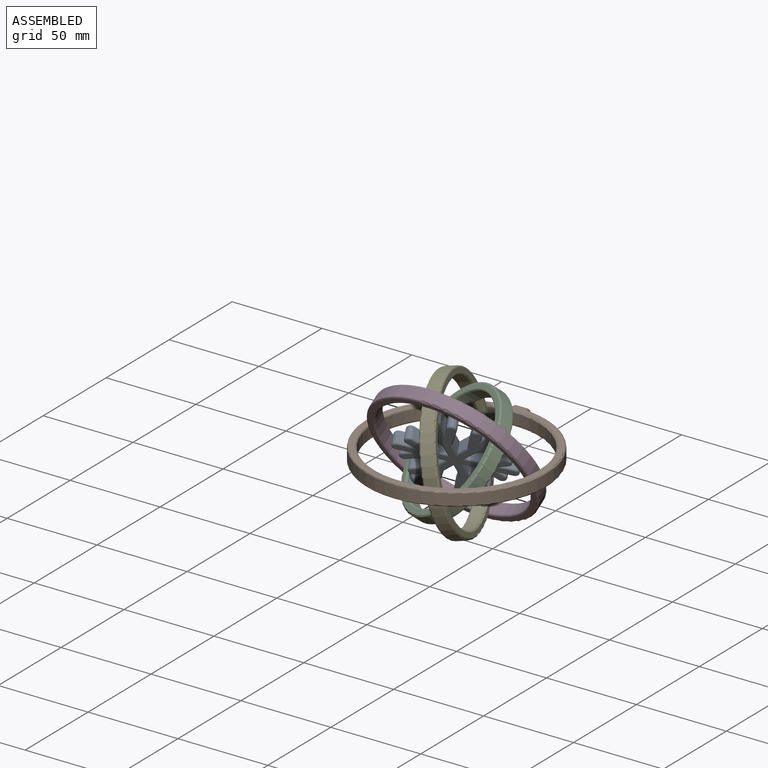
[diagram: assembled view]
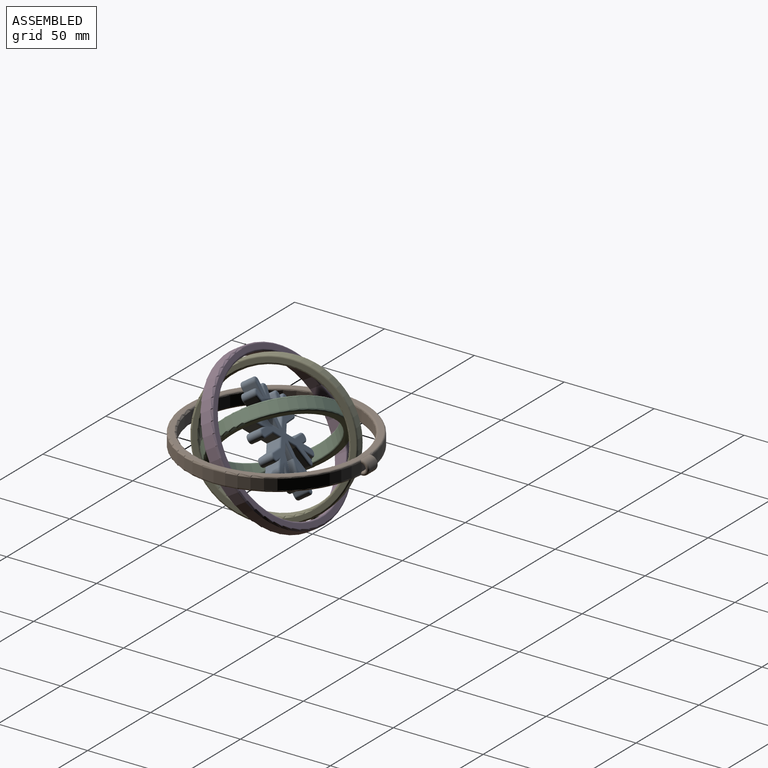
[diagram: assembled view, second angle]
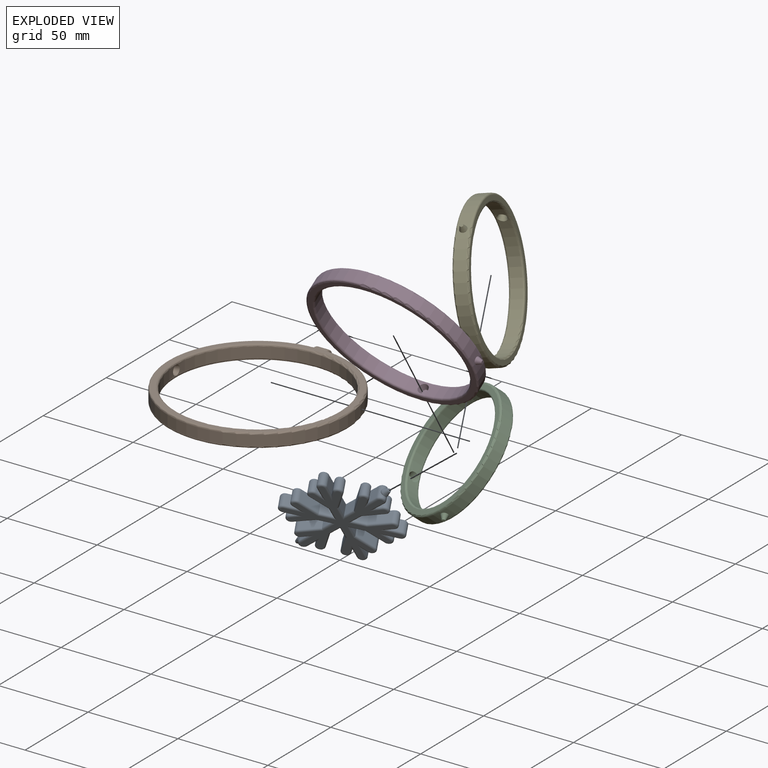
[diagram: exploded view]
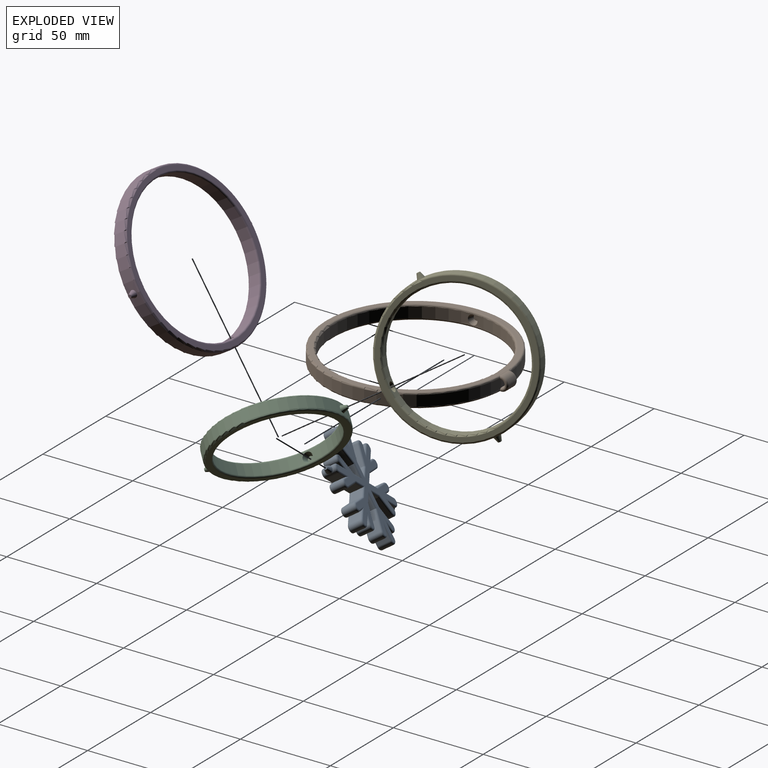
[diagram: exploded view, second angle]
ASSEMBLY  parts=5 mates=4
PART A: 208 faces, bbox 53x66x8 mm
  f0: cylinder r=2.5mm len=6mm, axis (0,0,1), area 33.2mm2, adj f13,f14,f72,f75,f97,f164
  f1: cylinder r=2.5mm len=6mm, axis (0,0,1), area 33.2mm2, adj f37,f38,f68,f71,f120,f185
  f2: plane 6.06x6mm, normal (-0.5,0.87,0), area 42mm2, adj f3,f49,f86,f151
  f3: plane 11.83x6mm, normal (0,1,0), area 71mm2, adj f2,f55,f84,f149
  f4: plane 6x3.17mm, normal (0,-1,0), area 19mm2, adj f5,f55,f80,f145
  f5: plane 6x5.34mm, normal (-0.5,0.87,0), area 37mm2, adj f4,f62,f78,f143
  f6: plane 6x5.34mm, normal (0.5,-0.87,0), area 37mm2, adj f7,f62,f77,f144
  f7: plane 6x2.75mm, normal (-0.87,0.5,0), area 19mm2, adj f6,f59,f79,f146
  f8: plane 10.25x6mm, normal (0.87,-0.5,0), area 71mm2, adj f9,f59,f83,f150
  f9: plane 6.06x6mm, normal (0.5,-0.87,0), area 42mm2, adj f8,f10,f85,f152
  f10: plane 7x6mm, normal (-1,0,0), area 42mm2, adj f9,f11,f87,f154
  f11: plane 10.25x6mm, normal (-0.87,0.5,0), area 71mm2, adj f10,f54,f89,f156
  f12: plane 6x2.75mm, normal (0.87,-0.5,0), area 19mm2, adj f13,f54,f93,f160
  f13: plane 6.17x6mm, normal (-1,0,0), area 37mm2, adj f0,f12,f95,f162
  f14: plane 6.17x6mm, normal (1,0,0), area 37mm2, adj f0,f15,f99,f166
  f15: plane 6x2.75mm, normal (-0.87,-0.5,0), area 19mm2, adj f14,f61,f101,f168
  f16: plane 10.25x6mm, normal (0.87,0.5,0), area 71mm2, adj f17,f61,f105,f172
  f17: plane 7x6mm, normal (1,0,0), area 42mm2, adj f16,f18,f107,f174
  f18: plane 6.06x6mm, normal (-0.5,-0.87,0), area 42mm2, adj f17,f19,f109,f176
  f19: plane 10.25x6mm, normal (-0.87,-0.5,0), area 71mm2, adj f18,f65,f111,f178
  f20: plane 6x2.75mm, normal (0.87,0.5,0), area 19mm2, adj f21,f65,f115,f182
  f21: plane 6x5.34mm, normal (-0.5,-0.87,0), area 37mm2, adj f20,f58,f117,f184
  f22: plane 6x5.34mm, normal (0.5,0.87,0), area 37mm2, adj f23,f58,f121,f188
  f23: plane 6x3.17mm, normal (0,-1,0), area 19mm2, adj f22,f66,f123,f190
  f24: plane 11.83x6mm, normal (0,1,0), area 71mm2, adj f25,f66,f127,f194
  f25: plane 6.06x6mm, normal (0.5,0.87,0), area 42mm2, adj f24,f26,f129,f196
  f26: plane 6.06x6mm, normal (0.5,-0.87,0), area 42mm2, adj f25,f27,f131,f198
  f27: plane 11.83x6mm, normal (0,-1,0), area 71mm2, adj f26,f56,f133,f200
  f28: plane 6x3.17mm, normal (0,1,0), area 19mm2, adj f29,f56,f137,f204
  f29: plane 6x5.34mm, normal (0.5,-0.87,0), area 37mm2, adj f28,f52,f139,f206
  f30: plane 6x5.34mm, normal (-0.5,0.87,0), area 37mm2, adj f31,f52,f140,f205
  f31: plane 6x2.75mm, normal (0.87,-0.5,0), area 19mm2, adj f30,f64,f138,f203
  f32: plane 10.25x6mm, normal (-0.87,0.5,0), area 71mm2, adj f33,f64,f134,f199
  f33: plane 6.06x6mm, normal (-0.5,0.87,0), area 42mm2, adj f32,f34,f132,f197
  f34: plane 7x6mm, normal (1,0,0), area 42mm2, adj f33,f35,f130,f195
  f35: plane 10.25x6mm, normal (0.87,-0.5,0), area 71mm2, adj f34,f67,f128,f193
  f36: plane 6x2.75mm, normal (-0.87,0.5,0), area 19mm2, adj f37,f67,f124,f189
  f37: plane 6.17x6mm, normal (1,0,0), area 37mm2, adj f1,f36,f122,f187
  f38: plane 6.17x6mm, normal (-1,0,0), area 37mm2, adj f1,f39,f118,f183
  f39: plane 6x2.75mm, normal (0.87,0.5,0), area 19mm2, adj f38,f60,f116,f181
  f40: plane 10.25x6mm, normal (-0.87,-0.5,0), area 71mm2, adj f41,f60,f112,f177
  f41: plane 7x6mm, normal (-1,0,0), area 42mm2, adj f40,f42,f110,f175
  f42: plane 6.06x6mm, normal (0.5,0.87,0), area 42mm2, adj f41,f43,f108,f173
  f43: plane 10.25x6mm, normal (0.87,0.5,0), area 71mm2, adj f42,f57,f106,f171
  f44: plane 6x2.75mm, normal (-0.87,-0.5,0), area 19mm2, adj f45,f57,f102,f167
  f45: plane 6x5.34mm, normal (0.5,0.87,0), area 37mm2, adj f44,f63,f100,f165
  f46: plane 6x5.34mm, normal (-0.5,-0.87,0), area 37mm2, adj f47,f63,f96,f161
  f47: plane 6x3.17mm, normal (0,1,0), area 19mm2, adj f46,f53,f94,f159
  f48: plane 11.83x6mm, normal (0,-1,0), area 71mm2, adj f49,f53,f90,f155
  f49: plane 6.06x6mm, normal (-0.5,-0.87,0), area 42mm2, adj f2,f48,f88,f153
  f50: plane 58x50.63mm, normal (0,0,1), area 877.2mm2, adj f76,f77,f78,f79,f80,f81,f82,f83
  f51: plane 58x50.63mm, normal (0,0,-1), area 877.2mm2, adj f142,f143,f144,f145,f146,f147,f148,f149
  f52: cylinder r=2.5mm len=6mm, axis (0,0,1), area 47.1mm2, adj f29,f30,f141,f207
  f53: cylinder r=2.5mm len=6mm, axis (0,0,-1), area 47.1mm2, adj f47,f48,f92,f157
  f54: cylinder r=2.5mm len=6mm, axis (0,0,-1), area 47.1mm2, adj f11,f12,f91,f158
  f55: cylinder r=2.5mm len=6mm, axis (0,0,-1), area 47.1mm2, adj f3,f4,f82,f147
  f56: cylinder r=2.5mm len=6mm, axis (0,0,-1), area 47.1mm2, adj f27,f28,f135,f202
  f57: cylinder r=2.5mm len=6mm, axis (0,0,-1), area 47.1mm2, adj f43,f44,f104,f169
  f58: cylinder r=2.5mm len=6mm, axis (0,0,1), area 47.1mm2, adj f21,f22,f119,f186
  f59: cylinder r=2.5mm len=6mm, axis (0,0,-1), area 47.1mm2, adj f7,f8,f81,f148
  f60: cylinder r=2.5mm len=6mm, axis (0,0,-1), area 47.1mm2, adj f39,f40,f114,f179
  f61: cylinder r=2.5mm len=6mm, axis (0,0,-1), area 47.1mm2, adj f15,f16,f103,f170
  f62: cylinder r=2.5mm len=6mm, axis (0,0,1), area 47.1mm2, adj f5,f6,f76,f142
  f63: cylinder r=2.5mm len=6mm, axis (0,0,1), area 47.1mm2, adj f45,f46,f98,f163
  f64: cylinder r=2.5mm len=6mm, axis (0,0,-1), area 47.1mm2, adj f31,f32,f136,f201
  f65: cylinder r=2.5mm len=6mm, axis (0,0,-1), area 47.1mm2, adj f19,f20,f113,f180
  f66: cylinder r=2.5mm len=6mm, axis (0,0,-1), area 47.1mm2, adj f23,f24,f125,f192
  f67: cylinder r=2.5mm len=6mm, axis (0,0,-1), area 47.1mm2, adj f35,f36,f126,f191
  f68: cylinder r=2mm len=4mm, axis (0,-1,0), area 2.9mm2, adj f1,f70
  f69: plane 1.82x1.82mm, normal (0,1,0), area 2.6mm2, adj f70
  f70: cone r=2mm half-angle=20deg, axis (0,-1,0), area 29.2mm2, adj f68,f69,f71
  f71: cylinder r=2mm len=4mm, axis (0,-1,0), area 2.9mm2, adj f1,f70
  f72: cylinder r=2mm len=4mm, axis (0,1,0), area 2.9mm2, adj f0,f74
  f73: plane 1.82x1.82mm, normal (0,-1,0), area 2.6mm2, adj f74
  f74: cone r=2mm half-angle=20deg, axis (0,1,0), area 29.2mm2, adj f72,f73,f75
  f75: cylinder r=2mm len=4mm, axis (0,1,0), area 2.9mm2, adj f0,f74
  f76: torus R=1.5mm, axis (0,0,1), area 10.5mm2, adj f50,f62,f77,f78
  f77: cylinder r=1mm len=9.08mm, axis (-0.87,-0.5,0), area 11.8mm2, adj f6,f50,f76,f79
  f78: cylinder r=1mm len=9.08mm, axis (0.87,0.5,0), area 11.8mm2, adj f5,f50,f76,f80
  f79: cylinder r=1mm len=6.48mm, axis (0.5,0.87,0), area 7.1mm2, adj f7,f50,f77,f81
  f80: cylinder r=1mm len=6.9mm, axis (-1,0,0), area 7.1mm2, adj f4,f50,f78,f82
  f81: torus R=1.5mm, axis (0,0,1), area 10.5mm2, adj f50,f59,f79,f83
  f82: torus R=1.5mm, axis (0,0,1), area 10.5mm2, adj f50,f55,f80,f84
  f83: cylinder r=1mm len=10.98mm, axis (-0.5,-0.87,0), area 18.7mm2, adj f8,f50,f81,f85
  f84: cylinder r=1mm len=12.1mm, axis (1,0,0), area 18.7mm2, adj f3,f50,f82,f86
  f85: cylinder r=1mm len=8.29mm, axis (-0.87,-0.5,0), area 12.1mm2, adj f9,f50,f83,f87
  f86: cylinder r=1mm len=8.29mm, axis (0.87,0.5,0), area 12.1mm2, adj f2,f50,f84,f88
  f87: cylinder r=1mm len=9mm, axis (0,1,0), area 12.1mm2, adj f10,f50,f85,f89
  f88: cylinder r=1mm len=8.29mm, axis (-0.87,0.5,0), area 12.1mm2, adj f49,f50,f86,f90
  f89: cylinder r=1mm len=10.98mm, axis (0.5,0.87,0), area 18.7mm2, adj f11,f50,f87,f91
  f90: cylinder r=1mm len=12.1mm, axis (-1,0,0), area 18.7mm2, adj f48,f50,f88,f92
  f91: torus R=1.5mm, axis (0,0,1), area 10.5mm2, adj f50,f54,f89,f93
  f92: torus R=1.5mm, axis (0,0,1), area 10.5mm2, adj f50,f53,f90,f94
  f93: cylinder r=1mm len=6.48mm, axis (-0.5,-0.87,0), area 7.1mm2, adj f12,f50,f91,f95
  f94: cylinder r=1mm len=6.9mm, axis (1,0,0), area 7.1mm2, adj f47,f50,f92,f96
  f95: cylinder r=1mm len=9.9mm, axis (0,1,0), area 11.8mm2, adj f13,f50,f93,f97
  f96: cylinder r=1mm len=9.08mm, axis (-0.87,0.5,0), area 11.8mm2, adj f46,f50,f94,f98
  f97: torus R=1.5mm, axis (0,0,1), area 10.5mm2, adj f0,f50,f95,f99
  f98: torus R=1.5mm, axis (0,0,1), area 10.5mm2, adj f50,f63,f96,f100
  f99: cylinder r=1mm len=9.9mm, axis (0,-1,0), area 11.8mm2, adj f14,f50,f97,f101
  f100: cylinder r=1mm len=9.08mm, axis (0.87,-0.5,0), area 11.8mm2, adj f45,f50,f98,f102
  f101: cylinder r=1mm len=6.48mm, axis (-0.5,0.87,0), area 7.1mm2, adj f15,f50,f99,f103
  f102: cylinder r=1mm len=6.48mm, axis (-0.5,0.87,0), area 7.1mm2, adj f44,f50,f100,f104
  f103: torus R=1.5mm, axis (0,0,1), area 10.5mm2, adj f50,f61,f101,f105
  f104: torus R=1.5mm, axis (0,0,1), area 10.5mm2, adj f50,f57,f102,f106
  f105: cylinder r=1mm len=10.98mm, axis (0.5,-0.87,0), area 18.7mm2, adj f16,f50,f103,f107
  f106: cylinder r=1mm len=10.98mm, axis (0.5,-0.87,0), area 18.7mm2, adj f43,f50,f104,f108
  f107: cylinder r=1mm len=9mm, axis (0,-1,0), area 12.1mm2, adj f17,f50,f105,f109
  f108: cylinder r=1mm len=8.29mm, axis (0.87,-0.5,0), area 12.1mm2, adj f42,f50,f106,f110
  f109: cylinder r=1mm len=8.29mm, axis (-0.87,0.5,0), area 12.1mm2, adj f18,f50,f107,f111
  f110: cylinder r=1mm len=9mm, axis (0,1,0), area 12.1mm2, adj f41,f50,f108,f112
  f111: cylinder r=1mm len=10.98mm, axis (-0.5,0.87,0), area 18.7mm2, adj f19,f50,f109,f113
  f112: cylinder r=1mm len=10.98mm, axis (-0.5,0.87,0), area 18.7mm2, adj f40,f50,f110,f114
  f113: torus R=1.5mm, axis (0,0,1), area 10.5mm2, adj f50,f65,f111,f115
  f114: torus R=1.5mm, axis (0,0,1), area 10.5mm2, adj f50,f60,f112,f116
  f115: cylinder r=1mm len=6.48mm, axis (0.5,-0.87,0), area 7.1mm2, adj f20,f50,f113,f117
  f116: cylinder r=1mm len=6.48mm, axis (0.5,-0.87,0), area 7.1mm2, adj f39,f50,f114,f118
  f117: cylinder r=1mm len=9.08mm, axis (-0.87,0.5,0), area 11.8mm2, adj f21,f50,f115,f119
  f118: cylinder r=1mm len=9.9mm, axis (0,1,0), area 11.8mm2, adj f38,f50,f116,f120
  f119: torus R=1.5mm, axis (0,0,1), area 10.5mm2, adj f50,f58,f117,f121
  f120: torus R=1.5mm, axis (0,0,1), area 10.5mm2, adj f1,f50,f118,f122
  f121: cylinder r=1mm len=9.08mm, axis (0.87,-0.5,0), area 11.8mm2, adj f22,f50,f119,f123
  f122: cylinder r=1mm len=9.9mm, axis (0,-1,0), area 11.8mm2, adj f37,f50,f120,f124
  f123: cylinder r=1mm len=6.9mm, axis (-1,0,0), area 7.1mm2, adj f23,f50,f121,f125
  f124: cylinder r=1mm len=6.48mm, axis (0.5,0.87,0), area 7.1mm2, adj f36,f50,f122,f126
  f125: torus R=1.5mm, axis (0,0,1), area 10.5mm2, adj f50,f66,f123,f127
  f126: torus R=1.5mm, axis (0,0,1), area 10.5mm2, adj f50,f67,f124,f128
  f127: cylinder r=1mm len=12.1mm, axis (1,0,0), area 18.7mm2, adj f24,f50,f125,f129
  f128: cylinder r=1mm len=10.98mm, axis (-0.5,-0.87,0), area 18.7mm2, adj f35,f50,f126,f130
  f129: cylinder r=1mm len=8.29mm, axis (0.87,-0.5,0), area 12.1mm2, adj f25,f50,f127,f131
  f130: cylinder r=1mm len=9mm, axis (0,-1,0), area 12.1mm2, adj f34,f50,f128,f132
  f131: cylinder r=1mm len=8.29mm, axis (-0.87,-0.5,0), area 12.1mm2, adj f26,f50,f129,f133
  f132: cylinder r=1mm len=8.29mm, axis (0.87,0.5,0), area 12.1mm2, adj f33,f50,f130,f134
  f133: cylinder r=1mm len=12.1mm, axis (-1,0,0), area 18.7mm2, adj f27,f50,f131,f135
  f134: cylinder r=1mm len=10.98mm, axis (0.5,0.87,0), area 18.7mm2, adj f32,f50,f132,f136
  f135: torus R=1.5mm, axis (0,0,1), area 10.5mm2, adj f50,f56,f133,f137
  f136: torus R=1.5mm, axis (0,0,1), area 10.5mm2, adj f50,f64,f134,f138
  f137: cylinder r=1mm len=6.9mm, axis (1,0,0), area 7.1mm2, adj f28,f50,f135,f139
  f138: cylinder r=1mm len=6.48mm, axis (-0.5,-0.87,0), area 7.1mm2, adj f31,f50,f136,f140
  f139: cylinder r=1mm len=9.08mm, axis (-0.87,-0.5,0), area 11.8mm2, adj f29,f50,f137,f141
  f140: cylinder r=1mm len=9.08mm, axis (0.87,0.5,0), area 11.8mm2, adj f30,f50,f138,f141
  f141: torus R=1.5mm, axis (0,0,1), area 10.5mm2, adj f50,f52,f139,f140
  f142: torus R=1.5mm, axis (0,0,1), area 10.5mm2, adj f51,f62,f143,f144
  f143: cylinder r=1mm len=9.08mm, axis (-0.87,-0.5,0), area 11.8mm2, adj f5,f51,f142,f145
  f144: cylinder r=1mm len=9.08mm, axis (0.87,0.5,0), area 11.8mm2, adj f6,f51,f142,f146
  f145: cylinder r=1mm len=6.9mm, axis (1,0,0), area 7.1mm2, adj f4,f51,f143,f147
  f146: cylinder r=1mm len=6.48mm, axis (-0.5,-0.87,0), area 7.1mm2, adj f7,f51,f144,f148
  f147: torus R=1.5mm, axis (0,0,1), area 10.5mm2, adj f51,f55,f145,f149
  f148: torus R=1.5mm, axis (0,0,1), area 10.5mm2, adj f51,f59,f146,f150
  f149: cylinder r=1mm len=12.1mm, axis (-1,0,0), area 18.7mm2, adj f3,f51,f147,f151
  f150: cylinder r=1mm len=10.98mm, axis (0.5,0.87,0), area 18.7mm2, adj f8,f51,f148,f152
  f151: cylinder r=1mm len=8.29mm, axis (-0.87,-0.5,0), area 12.1mm2, adj f2,f51,f149,f153
  f152: cylinder r=1mm len=8.29mm, axis (0.87,0.5,0), area 12.1mm2, adj f9,f51,f150,f154
  f153: cylinder r=1mm len=8.29mm, axis (0.87,-0.5,0), area 12.1mm2, adj f49,f51,f151,f155
  f154: cylinder r=1mm len=9mm, axis (0,-1,0), area 12.1mm2, adj f10,f51,f152,f156
  f155: cylinder r=1mm len=12.1mm, axis (1,0,0), area 18.7mm2, adj f48,f51,f153,f157
  f156: cylinder r=1mm len=10.98mm, axis (-0.5,-0.87,0), area 18.7mm2, adj f11,f51,f154,f158
  f157: torus R=1.5mm, axis (0,0,1), area 10.5mm2, adj f51,f53,f155,f159
  f158: torus R=1.5mm, axis (0,0,1), area 10.5mm2, adj f51,f54,f156,f160
  f159: cylinder r=1mm len=6.9mm, axis (-1,0,0), area 7.1mm2, adj f47,f51,f157,f161
  f160: cylinder r=1mm len=6.48mm, axis (0.5,0.87,0), area 7.1mm2, adj f12,f51,f158,f162
  f161: cylinder r=1mm len=9.08mm, axis (0.87,-0.5,0), area 11.8mm2, adj f46,f51,f159,f163
  f162: cylinder r=1mm len=9.9mm, axis (0,-1,0), area 11.8mm2, adj f13,f51,f160,f164
  f163: torus R=1.5mm, axis (0,0,1), area 10.5mm2, adj f51,f63,f161,f165
  f164: torus R=1.5mm, axis (0,0,1), area 10.5mm2, adj f0,f51,f162,f166
  f165: cylinder r=1mm len=9.08mm, axis (-0.87,0.5,0), area 11.8mm2, adj f45,f51,f163,f167
  f166: cylinder r=1mm len=9.9mm, axis (0,1,0), area 11.8mm2, adj f14,f51,f164,f168
  f167: cylinder r=1mm len=6.48mm, axis (0.5,-0.87,0), area 7.1mm2, adj f44,f51,f165,f169
  f168: cylinder r=1mm len=6.48mm, axis (0.5,-0.87,0), area 7.1mm2, adj f15,f51,f166,f170
  f169: torus R=1.5mm, axis (0,0,1), area 10.5mm2, adj f51,f57,f167,f171
  f170: torus R=1.5mm, axis (0,0,1), area 10.5mm2, adj f51,f61,f168,f172
  f171: cylinder r=1mm len=10.98mm, axis (-0.5,0.87,0), area 18.7mm2, adj f43,f51,f169,f173
  f172: cylinder r=1mm len=10.98mm, axis (-0.5,0.87,0), area 18.7mm2, adj f16,f51,f170,f174
  f173: cylinder r=1mm len=8.29mm, axis (-0.87,0.5,0), area 12.1mm2, adj f42,f51,f171,f175
  f174: cylinder r=1mm len=9mm, axis (0,1,0), area 12.1mm2, adj f17,f51,f172,f176
  f175: cylinder r=1mm len=9mm, axis (0,-1,0), area 12.1mm2, adj f41,f51,f173,f177
  f176: cylinder r=1mm len=8.29mm, axis (0.87,-0.5,0), area 12.1mm2, adj f18,f51,f174,f178
  f177: cylinder r=1mm len=10.98mm, axis (0.5,-0.87,0), area 18.7mm2, adj f40,f51,f175,f179
  f178: cylinder r=1mm len=10.98mm, axis (0.5,-0.87,0), area 18.7mm2, adj f19,f51,f176,f180
  f179: torus R=1.5mm, axis (0,0,1), area 10.5mm2, adj f51,f60,f177,f181
  f180: torus R=1.5mm, axis (0,0,1), area 10.5mm2, adj f51,f65,f178,f182
  f181: cylinder r=1mm len=6.48mm, axis (-0.5,0.87,0), area 7.1mm2, adj f39,f51,f179,f183
  f182: cylinder r=1mm len=6.48mm, axis (-0.5,0.87,0), area 7.1mm2, adj f20,f51,f180,f184
  f183: cylinder r=1mm len=9.9mm, axis (0,-1,0), area 11.8mm2, adj f38,f51,f181,f185
  f184: cylinder r=1mm len=9.08mm, axis (0.87,-0.5,0), area 11.8mm2, adj f21,f51,f182,f186
  f185: torus R=1.5mm, axis (0,0,1), area 10.5mm2, adj f1,f51,f183,f187
  f186: torus R=1.5mm, axis (0,0,1), area 10.5mm2, adj f51,f58,f184,f188
  f187: cylinder r=1mm len=9.9mm, axis (0,1,0), area 11.8mm2, adj f37,f51,f185,f189
  f188: cylinder r=1mm len=9.08mm, axis (-0.87,0.5,0), area 11.8mm2, adj f22,f51,f186,f190
  f189: cylinder r=1mm len=6.48mm, axis (-0.5,-0.87,0), area 7.1mm2, adj f36,f51,f187,f191
  f190: cylinder r=1mm len=6.9mm, axis (1,0,0), area 7.1mm2, adj f23,f51,f188,f192
  f191: torus R=1.5mm, axis (0,0,1), area 10.5mm2, adj f51,f67,f189,f193
  f192: torus R=1.5mm, axis (0,0,1), area 10.5mm2, adj f51,f66,f190,f194
  f193: cylinder r=1mm len=10.98mm, axis (0.5,0.87,0), area 18.7mm2, adj f35,f51,f191,f195
  f194: cylinder r=1mm len=12.1mm, axis (-1,0,0), area 18.7mm2, adj f24,f51,f192,f196
  f195: cylinder r=1mm len=9mm, axis (0,1,0), area 12.1mm2, adj f34,f51,f193,f197
  f196: cylinder r=1mm len=8.29mm, axis (-0.87,0.5,0), area 12.1mm2, adj f25,f51,f194,f198
  f197: cylinder r=1mm len=8.29mm, axis (-0.87,-0.5,0), area 12.1mm2, adj f33,f51,f195,f199
  f198: cylinder r=1mm len=8.29mm, axis (0.87,0.5,0), area 12.1mm2, adj f26,f51,f196,f200
  f199: cylinder r=1mm len=10.98mm, axis (-0.5,-0.87,0), area 18.7mm2, adj f32,f51,f197,f201
  f200: cylinder r=1mm len=12.1mm, axis (1,0,0), area 18.7mm2, adj f27,f51,f198,f202
  f201: torus R=1.5mm, axis (0,0,1), area 10.5mm2, adj f51,f64,f199,f203
  f202: torus R=1.5mm, axis (0,0,1), area 10.5mm2, adj f51,f56,f200,f204
  f203: cylinder r=1mm len=6.48mm, axis (0.5,0.87,0), area 7.1mm2, adj f31,f51,f201,f205
  f204: cylinder r=1mm len=6.9mm, axis (-1,0,0), area 7.1mm2, adj f28,f51,f202,f206
  f205: cylinder r=1mm len=9.08mm, axis (-0.87,-0.5,0), area 11.8mm2, adj f30,f51,f203,f207
  f206: cylinder r=1mm len=9.08mm, axis (0.87,0.5,0), area 11.8mm2, adj f29,f51,f204,f207
  f207: torus R=1.5mm, axis (0,0,1), area 10.5mm2, adj f51,f52,f205,f206
PART B: 20 faces, bbox 108.2x108.4x8.7 mm
  f0: cylinder r=50mm len=100mm, axis (0,0,-1), area 1869.8mm2, adj f12,f15,f17,f18,f19
  f1: cylinder r=2.67mm len=5.33mm, axis (1,0,0), area 0.3mm2, adj f3,f5
  f2: cylinder r=2.67mm len=5.33mm, axis (1,0,0), area 0.3mm2, adj f3,f5
  f3: cone r=2.67mm half-angle=20deg, axis (1,0,0), area 42.5mm2, adj f1,f2,f4
  f4: plane 3.15x3.15mm, normal (1,0,0), area 7.8mm2, adj f3
  f5: cylinder r=45.5mm len=91mm, axis (0,0,-1), area 1670.6mm2, adj f1,f2,f8,f11,f14,f16
  f6: plane 98x98mm, normal (0,0,1), area 750.1mm2, adj f16,f17
  f7: plane 98x98mm, normal (0,0,-1), area 750.1mm2, adj f14,f15
  f8: cylinder r=2.67mm len=5.33mm, axis (-1,0,0), area 0.3mm2, adj f5,f10
  f9: plane 3.15x3.15mm, normal (-1,0,0), area 7.8mm2, adj f10
  f10: cone r=2.67mm half-angle=20deg, axis (-1,0,0), area 42.5mm2, adj f8,f9,f11
  f11: cylinder r=2.67mm len=5.33mm, axis (-1,0,0), area 0.3mm2, adj f5,f10
  f12: cylinder r=2mm len=6mm, axis (-1,0,0), area 38.1mm2, adj f0,f18,f19
  f13: cylinder r=4mm len=8mm, axis (-1,0,0), area 83.7mm2, adj f15,f17,f18,f19
  f14: torus R=46.5mm, axis (0,0,1), area 452.7mm2, adj f5,f7
  f15: torus R=49mm, axis (0,0,1), area 480.8mm2, adj f0,f7,f13,f18,f19
  f16: torus R=46.5mm, axis (0,0,1), area 452.7mm2, adj f5,f6
  f17: torus R=49mm, axis (0,0,1), area 480.8mm2, adj f0,f6,f13,f18,f19
  f18: torus R=3mm, axis (1,0,0), area 31.4mm2, adj f0,f12,f13,f15,f17
  f19: torus R=3mm, axis (1,0,0), area 31.4mm2, adj f0,f12,f13,f15,f17
PART C: 24 faces, bbox 76x75.8x8 mm
  f0: cylinder r=2mm len=4mm, axis (1,0,0), area 0.2mm2, adj f2,f4
  f1: cylinder r=2mm len=4mm, axis (1,0,0), area 0.2mm2, adj f2,f4
  f2: cone r=2mm half-angle=20deg, axis (1,0,0), area 29.2mm2, adj f0,f1,f3
  f3: plane 1.82x1.82mm, normal (-1,0,0), area 2.6mm2, adj f2
  f4: cylinder r=35mm len=70mm, axis (0,0,-1), area 1294.3mm2, adj f0,f1,f16,f17,f21,f23
  f5: cylinder r=2.67mm len=5.33mm, axis (0,1,0), area 0.5mm2, adj f7,f9
  f6: cylinder r=2.67mm len=5.33mm, axis (0,1,0), area 0.5mm2, adj f7,f9
  f7: cone r=2.67mm half-angle=20deg, axis (0,1,0), area 42.5mm2, adj f5,f6,f8
  f8: plane 3.15x3.15mm, normal (0,1,0), area 7.8mm2, adj f7
  f9: cylinder r=30.5mm len=61mm, axis (0,0,-1), area 1105.1mm2, adj f5,f6,f12,f15,f20,f22
  f10: plane 68x68mm, normal (0,0,1), area 514.4mm2, adj f22,f23
  f11: plane 68x68mm, normal (0,0,-1), area 514.4mm2, adj f20,f21
  f12: cylinder r=2.67mm len=5.33mm, axis (0,-1,0), area 0.5mm2, adj f9,f14
  f13: plane 3.15x3.15mm, normal (0,-1,0), area 7.8mm2, adj f14
  f14: cone r=2.67mm half-angle=20deg, axis (0,-1,0), area 42.5mm2, adj f12,f13,f15
  f15: cylinder r=2.67mm len=5.33mm, axis (0,-1,0), area 0.5mm2, adj f9,f14
  f16: cylinder r=2mm len=4mm, axis (-1,0,0), area 0.2mm2, adj f4,f19
  f17: cylinder r=2mm len=4mm, axis (-1,0,0), area 0.2mm2, adj f4,f19
  f18: plane 1.82x1.82mm, normal (1,0,0), area 2.6mm2, adj f19
  f19: cone r=2mm half-angle=20deg, axis (-1,0,0), area 29.2mm2, adj f16,f17,f18
  f20: torus R=31.5mm, axis (0,0,1), area 304.6mm2, adj f9,f11
  f21: torus R=34mm, axis (0,0,1), area 341.8mm2, adj f4,f11
  f22: torus R=31.5mm, axis (0,0,1), area 304.6mm2, adj f9,f10
  f23: torus R=34mm, axis (0,0,1), area 341.8mm2, adj f4,f10
PART D: 24 faces, bbox 97.4x97.4x8 mm
  f0: cylinder r=2mm len=4mm, axis (1,0,0), area 0.1mm2, adj f2,f4
  f1: cylinder r=2mm len=4mm, axis (1,0,0), area 0.1mm2, adj f2,f4
  f2: cone r=2mm half-angle=20deg, axis (1,0,0), area 29.2mm2, adj f0,f1,f3
  f3: plane 1.82x1.82mm, normal (-1,0,0), area 2.6mm2, adj f2
  f4: cylinder r=45mm len=90mm, axis (0,0,-1), area 1671.3mm2, adj f0,f1,f16,f17,f21,f23
  f5: cylinder r=2.67mm len=5.33mm, axis (0,1,0), area 0.4mm2, adj f7,f9
  f6: cylinder r=2.67mm len=5.33mm, axis (0,1,0), area 0.4mm2, adj f7,f9
  f7: cone r=2.67mm half-angle=20deg, axis (0,1,0), area 42.5mm2, adj f5,f6,f8
  f8: plane 3.15x3.15mm, normal (0,1,0), area 7.8mm2, adj f7
  f9: cylinder r=40.5mm len=81mm, axis (0,0,-1), area 1482.1mm2, adj f5,f6,f12,f15,f20,f22
  f10: plane 88x88mm, normal (0,0,1), area 671.5mm2, adj f22,f23
  f11: plane 88x88mm, normal (0,0,-1), area 671.5mm2, adj f20,f21
  f12: cylinder r=2.67mm len=5.33mm, axis (0,-1,0), area 0.4mm2, adj f9,f14
  f13: plane 3.15x3.15mm, normal (0,-1,0), area 7.8mm2, adj f14
  f14: cone r=2.67mm half-angle=20deg, axis (0,-1,0), area 42.5mm2, adj f12,f13,f15
  f15: cylinder r=2.67mm len=5.33mm, axis (0,-1,0), area 0.4mm2, adj f9,f14
  f16: cylinder r=2mm len=4mm, axis (-1,0,0), area 0.1mm2, adj f4,f19
  f17: cylinder r=2mm len=4mm, axis (-1,0,0), area 0.1mm2, adj f4,f19
  f18: plane 1.82x1.82mm, normal (1,0,0), area 2.6mm2, adj f19
  f19: cone r=2mm half-angle=20deg, axis (-1,0,0), area 29.2mm2, adj f16,f17,f18
  f20: torus R=41.5mm, axis (0,0,1), area 403.3mm2, adj f9,f11
  f21: torus R=44mm, axis (0,0,1), area 440.5mm2, adj f4,f11
  f22: torus R=41.5mm, axis (0,0,1), area 403.3mm2, adj f9,f10
  f23: torus R=44mm, axis (0,0,1), area 440.5mm2, adj f4,f10
PART E: 24 faces, bbox 86.6x86.6x8 mm
  f0: cylinder r=2mm len=4mm, axis (0,1,0), area 0.2mm2, adj f2,f4
  f1: cylinder r=2mm len=4mm, axis (0,1,0), area 0.2mm2, adj f2,f4
  f2: cone r=2mm half-angle=20deg, axis (0,1,0), area 29.2mm2, adj f0,f1,f3
  f3: plane 1.82x1.82mm, normal (0,-1,0), area 2.6mm2, adj f2
  f4: cylinder r=40mm len=80mm, axis (0,0,-1), area 1482.8mm2, adj f0,f1,f16,f17,f21,f23
  f5: cylinder r=2.67mm len=5.33mm, axis (1,0,0), area 0.4mm2, adj f7,f9
  f6: cylinder r=2.67mm len=5.33mm, axis (1,0,0), area 0.4mm2, adj f7,f9
  f7: cone r=2.67mm half-angle=20deg, axis (1,0,0), area 42.5mm2, adj f5,f6,f8
  f8: plane 3.15x3.15mm, normal (1,0,0), area 7.8mm2, adj f7
  f9: cylinder r=35.5mm len=71mm, axis (0,0,-1), area 1293.6mm2, adj f5,f6,f12,f15,f20,f22
  f10: plane 78x78mm, normal (0,0,1), area 593mm2, adj f22,f23
  f11: plane 78x78mm, normal (0,0,-1), area 593mm2, adj f20,f21
  f12: cylinder r=2.67mm len=5.33mm, axis (-1,0,0), area 0.4mm2, adj f9,f14
  f13: plane 3.15x3.15mm, normal (-1,0,0), area 7.8mm2, adj f14
  f14: cone r=2.67mm half-angle=20deg, axis (-1,0,0), area 42.5mm2, adj f12,f13,f15
  f15: cylinder r=2.67mm len=5.33mm, axis (-1,0,0), area 0.4mm2, adj f9,f14
  f16: cylinder r=2mm len=4mm, axis (0,-1,0), area 0.2mm2, adj f4,f19
  f17: cylinder r=2mm len=4mm, axis (0,-1,0), area 0.2mm2, adj f4,f19
  f18: plane 1.82x1.82mm, normal (0,1,0), area 2.6mm2, adj f19
  f19: cone r=2mm half-angle=20deg, axis (0,-1,0), area 29.2mm2, adj f16,f17,f18
  f20: torus R=36.5mm, axis (0,0,1), area 354mm2, adj f9,f11
  f21: torus R=39mm, axis (0,0,1), area 391.2mm2, adj f4,f11
  f22: torus R=36.5mm, axis (0,0,1), area 354mm2, adj f9,f10
  f23: torus R=39mm, axis (0,0,1), area 391.2mm2, adj f4,f10
PLACE A rot(axis=(0.5,-0.71,0.49),170.1deg) t=(-1.48,3.13,6.01)mm
PLACE B at identity fixed
PLACE C rot(axis=(-0.78,0.63,0),128.4deg) t=(-1.96,-2.45,6.49)mm
PLACE D rot(axis=(-1,0,0),58deg) t=(0,-3.39,1.88)mm
PLACE E rot(axis=(-0.58,0.71,-0.4),87.6deg) t=(-3.73,-1.23,3.23)mm
MATE revolute E.f7 <-> C.f2  axis (0.36,-0.79,-0.49) through (-12.87,28.07,21.51)mm
MATE revolute D.f12 <-> E.f16  axis (0,-0.53,0.85) through (0,21.43,-30.36)mm
MATE revolute C.f12 <-> A.f68  axis (0.79,-0.02,0.61) through (-24.19,0.49,-14.57)mm
MATE revolute B.f1 <-> D.f0  axis (1,0,0) through (-45.5,0,4)mm
